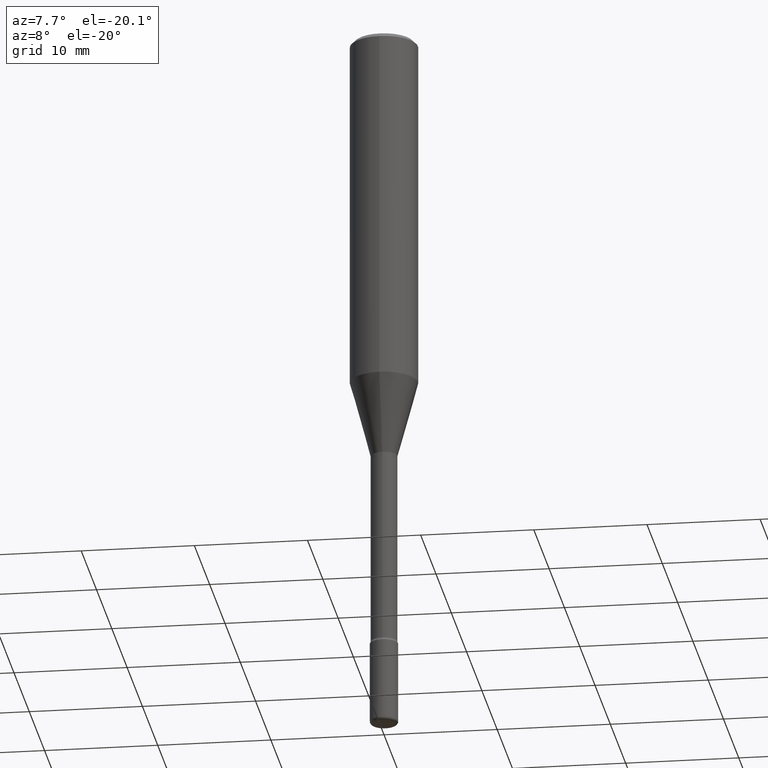
[diagram: clean part render]
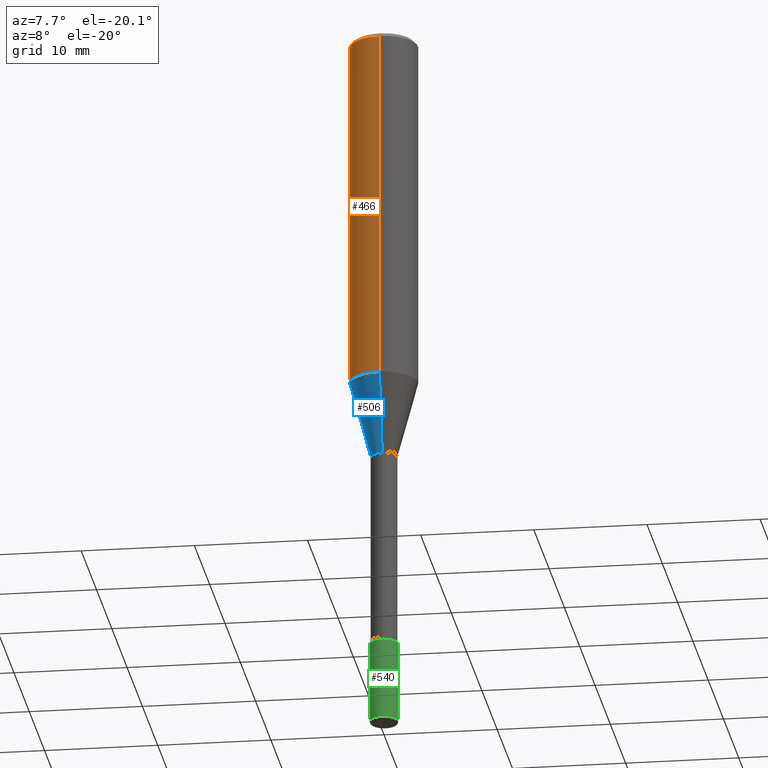
[diagram: same view with three faces highlighted in distinct colors, each labeled with its STEP entity id]
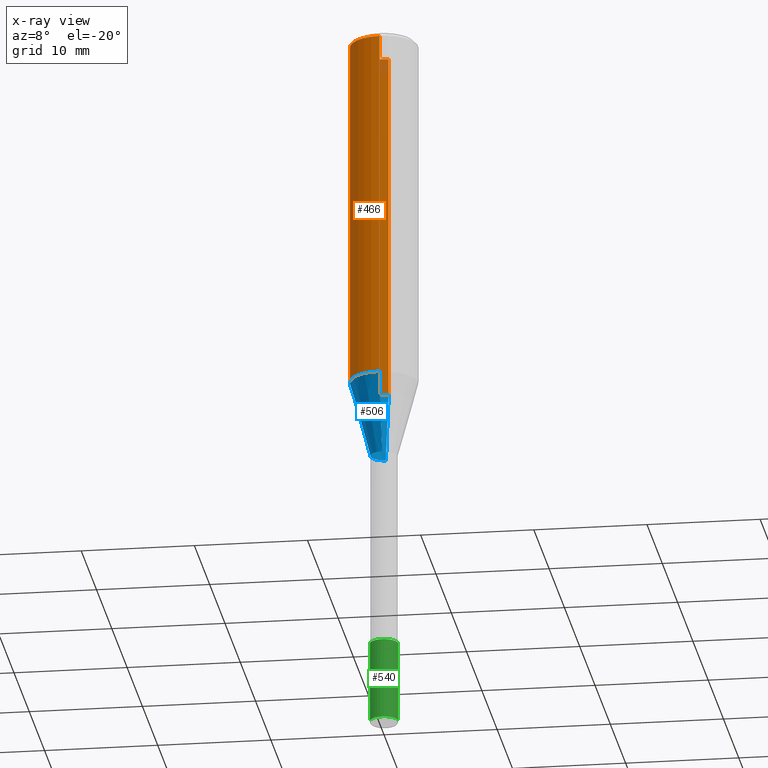
[diagram: x-ray of the same camera — body ghosted, the three highlighted faces saturated]
A machine part, auxiliary view with three faces highlighted in distinct colors.
The next image is the same camera in x-ray (body ghosted, the three faces saturated) — at least one of them is partly hidden behind the body in this view.
Their STEP definitions:

[orange] entity #466 — the highlighted cylindrical surface (edge-blend (fillet) strip) has radius 2.9997 mm, axis along (-0, 0, 1).
#10 = EDGE_LOOP ( 'NONE', ( #159, #208, #152, #121 ) ) ;
#11 = CIRCLE ( 'NONE', #398, 0.1180999999999999966 ) ;
#53 = LINE ( 'NONE', #174, #379 ) ;
#57 = DIRECTION ( 'NONE',  ( -2.445721087227316555E-29, 3.491120058031798950E-15, 1.000000000000000000 ) ) ;
#68 = EDGE_CURVE ( 'NONE', #496, #96, #103, .T. ) ;
#96 = VERTEX_POINT ( 'NONE', #194 ) ;
#103 = CIRCLE ( 'NONE', #133, 0.1180999999999999966 ) ;
#104 = LINE ( 'NONE', #424, #414 ) ;
#121 = ORIENTED_EDGE ( 'NONE', *, *, #450, .F. ) ;
#133 = AXIS2_PLACEMENT_3D ( 'NONE', #487, #260, #389 ) ;
#146 = AXIS2_PLACEMENT_3D ( 'NONE', #227, #231, #407 ) ;
#152 = ORIENTED_EDGE ( 'NONE', *, *, #268, .T. ) ;
#159 = ORIENTED_EDGE ( 'NONE', *, *, #495, .F. ) ;
#162 = CARTESIAN_POINT ( 'NONE',  ( -8.246878922347475723E-16, -0.1181000000000000522, -0.01499999999999961607 ) ) ;
#164 = DIRECTION ( 'NONE',  ( -2.445721087227316555E-29, 3.491120058031798950E-15, 1.000000000000000000 ) ) ;
#168 = CYLINDRICAL_SURFACE ( 'NONE', #146, 0.1180999999999999966 ) ;
#174 = CARTESIAN_POINT ( 'NONE',  ( 8.391509709326781971E-16, 0.1180999999999999966, 6.577212003769061022E-17 ) ) ;
#194 = CARTESIAN_POINT ( 'NONE',  ( -8.246878922347172998E-16, -0.1181000000000043126, -1.247552149476176320 ) ) ;
#195 = VERTEX_POINT ( 'NONE', #162 ) ;
#208 = ORIENTED_EDGE ( 'NONE', *, *, #68, .T. ) ;
#227 = CARTESIAN_POINT ( 'NONE',  ( -1.169113584055446105E-44, 1.669184350826100908E-30, 4.780733988912460139E-16 ) ) ;
#231 = DIRECTION ( 'NONE',  ( -2.445721087227316555E-29, 3.491120058031798950E-15, 1.000000000000000000 ) ) ;
#260 = DIRECTION ( 'NONE',  ( -2.445721087227316555E-29, 3.491120058031798950E-15, 1.000000000000000000 ) ) ;
#268 = EDGE_CURVE ( 'NONE', #96, #195, #104, .T. ) ;
#300 = FACE_OUTER_BOUND ( 'NONE', #10, .T. ) ;
#305 = DIRECTION ( 'NONE',  ( -6.982962677686265922E-15, -1.000000000000000000, 3.487819265831411744E-15 ) ) ;
#308 = VERTEX_POINT ( 'NONE', #531 ) ;
#312 = CARTESIAN_POINT ( 'NONE',  ( 8.391509709327088641E-16, 0.1180999999999956807, -1.247552149476177430 ) ) ;
#379 = VECTOR ( 'NONE', #543, 39.37007874015748143 ) ;
#389 = DIRECTION ( 'NONE',  ( -6.982962677686265922E-15, -1.000000000000000000, 4.626330217890369336E-15 ) ) ;
#398 = AXIS2_PLACEMENT_3D ( 'NONE', #572, #164, #305 ) ;
#407 = DIRECTION ( 'NONE',  ( -6.982962677686265922E-15, -1.000000000000000000, 3.491120058031799739E-15 ) ) ;
#414 = VECTOR ( 'NONE', #57, 39.37007874015748143 ) ;
#424 = CARTESIAN_POINT ( 'NONE',  ( -8.246878922347479668E-16, -0.1180999999999999966, 8.903746777448015409E-16 ) ) ;
#450 = EDGE_CURVE ( 'NONE', #308, #195, #11, .T. ) ;
#466 = ADVANCED_FACE ( 'NONE', ( #300 ), #168, .T. ) ;
#487 = CARTESIAN_POINT ( 'NONE',  ( 3.051164599389650582E-29, -4.355354332476965725E-15, -1.247552149476176764 ) ) ;
#495 = EDGE_CURVE ( 'NONE', #496, #308, #53, .T. ) ;
#496 = VERTEX_POINT ( 'NONE', #312 ) ;
#531 = CARTESIAN_POINT ( 'NONE',  ( 8.391509709327088641E-16, 0.1180999999999999411, -0.01500000000000044006 ) ) ;
#543 = DIRECTION ( 'NONE',  ( -2.445721087227316555E-29, 3.491120058031798950E-15, 1.000000000000000000 ) ) ;
#572 = CARTESIAN_POINT ( 'NONE',  ( 3.668581630840980928E-31, -5.236680087047708706E-17, -0.01500000000000002720 ) ) ;

[blue] entity #506 — the highlighted conical surface has half-angle 15 deg.
#12 = ORIENTED_EDGE ( 'NONE', *, *, #369, .T. ) ;
#14 = EDGE_CURVE ( 'NONE', #510, #496, #199, .T. ) ;
#68 = EDGE_CURVE ( 'NONE', #496, #96, #103, .T. ) ;
#78 = CARTESIAN_POINT ( 'NONE',  ( 3.322576887801829239E-16, 0.04676111260565870426, -1.513792501787273537 ) ) ;
#87 = DIRECTION ( 'NONE',  ( -6.982962677686265922E-15, -1.000000000000000000, 5.842136427980041740E-15 ) ) ;
#96 = VERTEX_POINT ( 'NONE', #194 ) ;
#100 = EDGE_LOOP ( 'NONE', ( #229, #186, #12, #567 ) ) ;
#103 = CIRCLE ( 'NONE', #133, 0.1180999999999999966 ) ;
#133 = AXIS2_PLACEMENT_3D ( 'NONE', #487, #260, #389 ) ;
#182 = DIRECTION ( 'NONE',  ( -2.445721087227316555E-29, 3.491120058031798950E-15, 1.000000000000000000 ) ) ;
#186 = ORIENTED_EDGE ( 'NONE', *, *, #392, .T. ) ;
#194 = CARTESIAN_POINT ( 'NONE',  ( -8.246878922347172998E-16, -0.1181000000000043126, -1.247552149476176320 ) ) ;
#199 = LINE ( 'NONE', #78, #436 ) ;
#215 = CARTESIAN_POINT ( 'NONE',  ( -3.265311040923994566E-16, -0.04676111260566927219, -1.513792501787273093 ) ) ;
#225 = VECTOR ( 'NONE', #306, 39.37007874015748143 ) ;
#229 = ORIENTED_EDGE ( 'NONE', *, *, #14, .F. ) ;
#259 = CARTESIAN_POINT ( 'NONE',  ( 3.702314243307729011E-29, -5.284831366687687522E-15, -1.513792501787273315 ) ) ;
#260 = DIRECTION ( 'NONE',  ( -2.445721087227316555E-29, 3.491120058031798950E-15, 1.000000000000000000 ) ) ;
#262 = DIRECTION ( 'NONE',  ( -6.982962677686265922E-15, -1.000000000000000000, 5.842136427980041740E-15 ) ) ;
#269 = CARTESIAN_POINT ( 'NONE',  ( 5.857043298564459926E-16, 0.04676111260565870426, -1.513792501787273537 ) ) ;
#306 = DIRECTION ( 'NONE',  ( -1.807323732225327773E-15, -0.2588190451025178529, 0.9659258262890690894 ) ) ;
#307 = LINE ( 'NONE', #215, #225 ) ;
#312 = CARTESIAN_POINT ( 'NONE',  ( 8.391509709327088641E-16, 0.1180999999999956807, -1.247552149476177430 ) ) ;
#352 = CARTESIAN_POINT ( 'NONE',  ( 3.702314243307729011E-29, -5.284831366687687522E-15, -1.513792501787273315 ) ) ;
#369 = EDGE_CURVE ( 'NONE', #380, #96, #307, .T. ) ;
#380 = VERTEX_POINT ( 'NONE', #569 ) ;
#388 = CONICAL_SURFACE ( 'NONE', #481, 0.04676111260566399169, 0.2617993877991499074 ) ;
#389 = DIRECTION ( 'NONE',  ( -6.982962677686265922E-15, -1.000000000000000000, 4.626330217890369336E-15 ) ) ;
#392 = EDGE_CURVE ( 'NONE', #510, #380, #570, .T. ) ;
#436 = VECTOR ( 'NONE', #525, 39.37007874015748854 ) ;
#442 = AXIS2_PLACEMENT_3D ( 'NONE', #259, #447, #262 ) ;
#447 = DIRECTION ( 'NONE',  ( -2.445721087227316555E-29, 3.491120058031798950E-15, 1.000000000000000000 ) ) ;
#481 = AXIS2_PLACEMENT_3D ( 'NONE', #352, #182, #87 ) ;
#487 = CARTESIAN_POINT ( 'NONE',  ( 3.051164599389650582E-29, -4.355354332476965725E-15, -1.247552149476176764 ) ) ;
#491 = FACE_OUTER_BOUND ( 'NONE', #100, .T. ) ;
#496 = VERTEX_POINT ( 'NONE', #312 ) ;
#506 = ADVANCED_FACE ( 'NONE', ( #491 ), #388, .T. ) ;
#510 = VERTEX_POINT ( 'NONE', #269 ) ;
#525 = DIRECTION ( 'NONE',  ( 1.839019923739597554E-15, 0.2588190451025245697, 0.9659258262890670910 ) ) ;
#567 = ORIENTED_EDGE ( 'NONE', *, *, #68, .F. ) ;
#569 = CARTESIAN_POINT ( 'NONE',  ( -3.265311040923994566E-16, -0.04676111260566927219, -1.513792501787273093 ) ) ;
#570 = CIRCLE ( 'NONE', #442, 0.04676111260566399169 ) ;

[green] entity #540 — the highlighted cylindrical surface (edge-blend (fillet) strip) has radius 1.2497 mm, axis along (-0, 0, 1).
#1 = VECTOR ( 'NONE', #26, 39.37007874015748143 ) ;
#6 = EDGE_CURVE ( 'NONE', #207, #192, #478, .T. ) ;
#8 = ORIENTED_EDGE ( 'NONE', *, *, #261, .T. ) ;
#9 = CARTESIAN_POINT ( 'NONE',  ( 0.000000000000000000, 0.000000000000000000, 0.000000000000000000 ) ) ;
#19 = AXIS2_PLACEMENT_3D ( 'NONE', #9, #355, #451 ) ;
#26 = DIRECTION ( 'NONE',  ( -2.445468806185136877E-29, 3.491481338843145188E-15, 1.000000000000000000 ) ) ;
#27 = EDGE_CURVE ( 'NONE', #192, #201, #278, .T. ) ;
#46 = FACE_OUTER_BOUND ( 'NONE', #277, .T. ) ;
#67 = DIRECTION ( 'NONE',  ( -2.445468806185136597E-29, 3.491481338843145583E-15, 1.000000000000000000 ) ) ;
#74 = AXIS2_PLACEMENT_3D ( 'NONE', #475, #90, #101 ) ;
#90 = DIRECTION ( 'NONE',  ( -2.445468806185136597E-29, 3.491481338843145583E-15, 1.000000000000000000 ) ) ;
#101 = DIRECTION ( 'NONE',  ( 1.000000000000000000, -6.982962677686260400E-15, 0.000000000000000000 ) ) ;
#105 = ORIENTED_EDGE ( 'NONE', *, *, #6, .F. ) ;
#124 = CIRCLE ( 'NONE', #74, 0.04920000000000000762 ) ;
#131 = CARTESIAN_POINT ( 'NONE',  ( 0.04920000000000017415, -9.031065631051680405E-15, -2.488199999999999967 ) ) ;
#140 = EDGE_CURVE ( 'NONE', #207, #403, #124, .T. ) ;
#157 = LINE ( 'NONE', #474, #1 ) ;
#192 = VERTEX_POINT ( 'NONE', #550 ) ;
#201 = VERTEX_POINT ( 'NONE', #286 ) ;
#207 = VERTEX_POINT ( 'NONE', #325 ) ;
#210 = VECTOR ( 'NONE', #339, 39.37007874015748143 ) ;
#261 = EDGE_CURVE ( 'NONE', #403, #201, #157, .T. ) ;
#277 = EDGE_LOOP ( 'NONE', ( #105, #454, #8, #375 ) ) ;
#278 = CIRCLE ( 'NONE', #400, 0.04920000000000000068 ) ;
#286 = CARTESIAN_POINT ( 'NONE',  ( 0.04920000000000000068, -8.041230671489647649E-15, -2.204700000000000326 ) ) ;
#299 = DIRECTION ( 'NONE',  ( 1.000000000000000000, -6.982962677686261977E-15, 0.000000000000000000 ) ) ;
#325 = CARTESIAN_POINT ( 'NONE',  ( -0.04920000000000017415, -8.337916841315544070E-15, -2.488199999999999967 ) ) ;
#339 = DIRECTION ( 'NONE',  ( -2.445468806185136877E-29, 3.491481338843145188E-15, 1.000000000000000000 ) ) ;
#355 = DIRECTION ( 'NONE',  ( -2.445468806185136597E-29, 3.491481338843145583E-15, 1.000000000000000000 ) ) ;
#359 = CYLINDRICAL_SURFACE ( 'NONE', #19, 0.04920000000000000068 ) ;
#375 = ORIENTED_EDGE ( 'NONE', *, *, #27, .F. ) ;
#400 = AXIS2_PLACEMENT_3D ( 'NONE', #558, #67, #299 ) ;
#403 = VERTEX_POINT ( 'NONE', #131 ) ;
#451 = DIRECTION ( 'NONE',  ( 1.000000000000000000, -6.982962677686266711E-15, 4.876176775795935793E-29 ) ) ;
#454 = ORIENTED_EDGE ( 'NONE', *, *, #140, .T. ) ;
#474 = CARTESIAN_POINT ( 'NONE',  ( 0.04920000000000000068, -3.435617637421643269E-16, 2.399078973691600472E-30 ) ) ;
#475 = CARTESIAN_POINT ( 'NONE',  ( 6.084815483549856310E-29, -8.687503867309514303E-15, -2.488199999999999967 ) ) ;
#478 = LINE ( 'NONE', #564, #210 ) ;
#540 = ADVANCED_FACE ( 'NONE', ( #46 ), #359, .T. ) ;
#550 = CARTESIAN_POINT ( 'NONE',  ( -0.04920000000000000068, -7.842999361534530848E-15, -2.204700000000000326 ) ) ;
#558 = CARTESIAN_POINT ( 'NONE',  ( 5.391525076996371277E-29, -7.697668907747483125E-15, -2.204700000000000326 ) ) ;
#564 = CARTESIAN_POINT ( 'NONE',  ( -0.04920000000000000068, 3.495870259939692963E-16, -2.420116064405413767E-30 ) ) ;